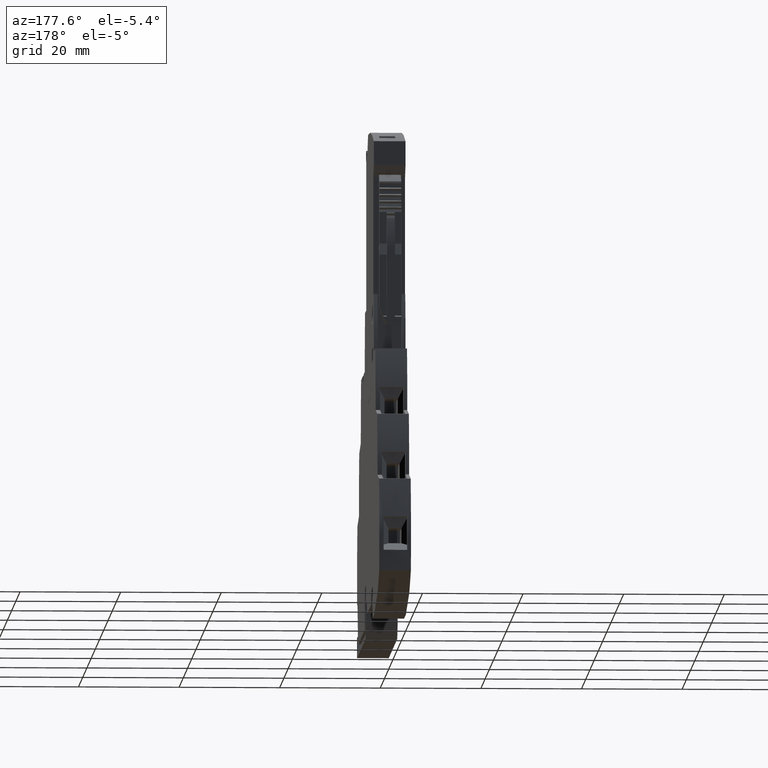
[diagram: clean part render]
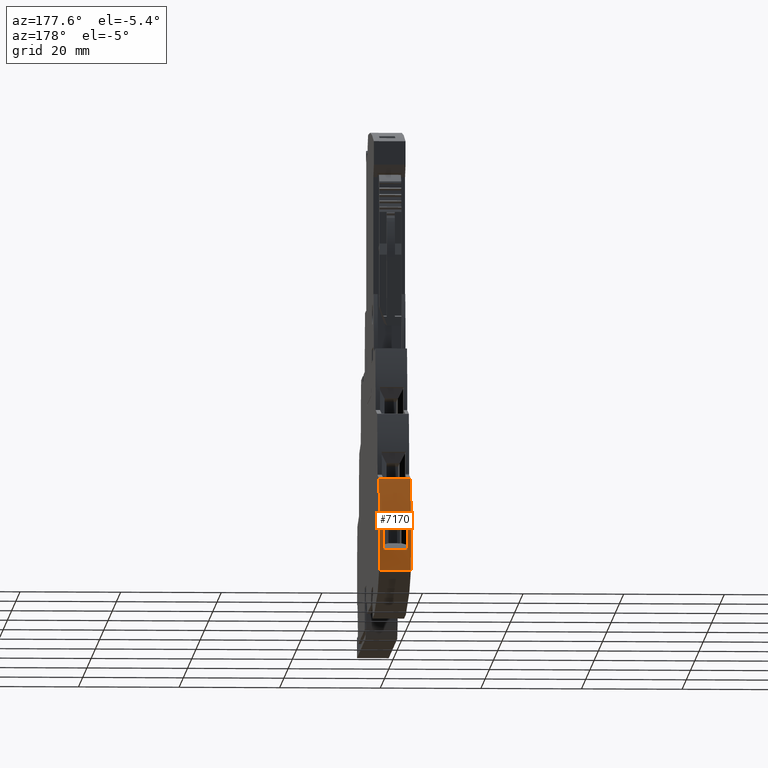
[diagram: same view with one face highlighted and labeled with its STEP entity id]
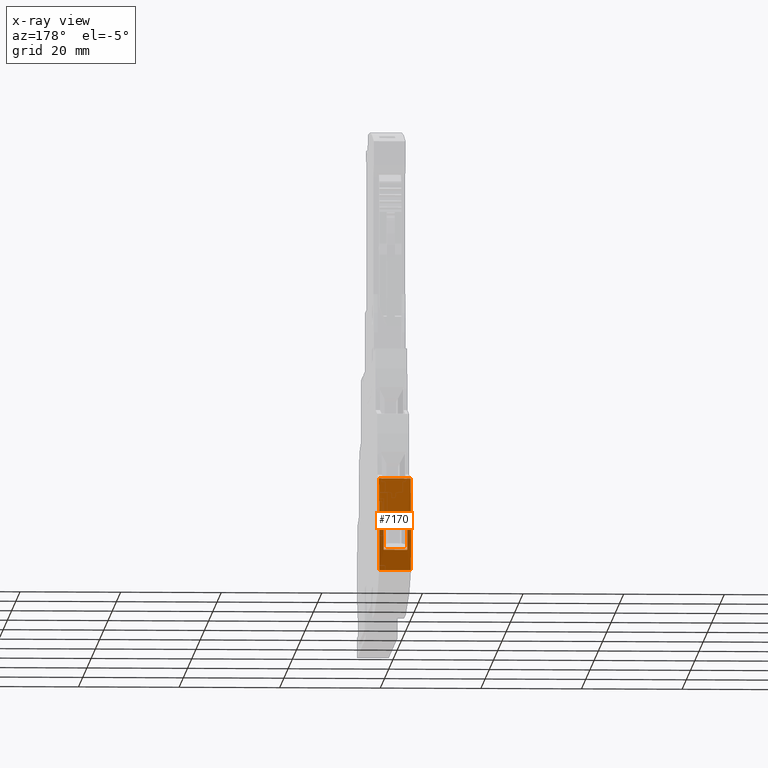
[diagram: x-ray of the same camera — body ghosted, the highlighted face saturated]
A machine part, auxiliary view. The second image highlights one B-rep face of the part: STEP entity #7170.
The next image is the same camera in x-ray: the body ghosted, the highlighted face saturated — about 0% of this face is hidden behind the body in this view.
In plain terms, the highlighted cylindrical surface (partial cylindrical patch) has radius 50 mm, axis along (1, -0, -0).
Its self-contained STEP definition (entity closure, byte-faithful):
#4360=CARTESIAN_POINT('',(29.2351400995934,0.586991843611994,
6.4775672949052E-10));
#4370=VERTEX_POINT('',#4360);
#4400=CARTESIAN_POINT('',(-20.3052351230874,7.3509568639236,
8.11195144784585E-9));
#4410=DIRECTION('',(4.25831752161686E-18,1.10352358519E-9,-1.));
#4420=DIRECTION('',(0.974090670046324,0.22615783543513,
2.49570509526172E-10));
#4430=AXIS2_PLACEMENT_3D('',#4400,#4410,#4420);
#4440=CIRCLE('',#4430,50.);
#4450=CARTESIAN_POINT('',(28.3248298487097,18.9749312586377,
2.09392812117623E-8));
#4460=VERTEX_POINT('',#4450);
#4470=EDGE_CURVE('',#4460,#4370,#4440,.T.);
#6500=CARTESIAN_POINT('',(-20.3052351230874,7.3509568639236,
8.11195144784585E-9));
#6510=DIRECTION('',(-4.25831752161686E-18,-1.10352358519E-9,1.));
#6520=DIRECTION('',(1.,0.,4.25831752161686E-18));
#6530=AXIS2_PLACEMENT_3D('',#6500,#6510,#6520);
#6540=CYLINDRICAL_SURFACE('',#6530,50.);
#6550=CARTESIAN_POINT('',(29.5415432134898,11.2623107749456,
5.43000029515854));
#6560=DIRECTION('',(0.,1.10352349877801E-9,-1.));
#6570=VECTOR('',#6560,1.);
#6580=LINE('',#6550,#6570);
#6590=CARTESIAN_POINT('',(29.5415432134898,11.2623107749457,
5.43000022619614));
#6600=VERTEX_POINT('',#6590);
#6610=CARTESIAN_POINT('',(29.5415432134898,11.2623107801323,
0.730000260513341));
#6620=VERTEX_POINT('',#6610);
#6630=EDGE_CURVE('',#6600,#6620,#6580,.T.);
#6640=ORIENTED_EDGE('',*,*,#6630,.T.);
#6650=CARTESIAN_POINT('',(-20.3052351230874,7.35095685793147,
5.43000029084227));
#6660=DIRECTION('',(9.73524377720023E-18,1.10352358561976E-9,-1.));
#6670=DIRECTION('',(0.9969355667315,0.0782270783408378,
8.63254356886501E-11));
#6680=AXIS2_PLACEMENT_3D('',#6650,#6660,#6670);
#6690=CIRCLE('',#6680,50.);
#6700=CARTESIAN_POINT('',(29.6206219840178,4.62904721194434,
5.43000028783858));
#6710=VERTEX_POINT('',#6700);
#6720=EDGE_CURVE('',#6600,#6710,#6690,.T.);
#6730=ORIENTED_EDGE('',*,*,#6720,.F.);
#6740=CARTESIAN_POINT('',(29.6206219839313,4.62904721554481,
0.730000224272752));
#6750=DIRECTION('',(0.,-1.10352349877801E-9,1.));
#6760=VECTOR('',#6750,1.);
#6770=LINE('',#6740,#6760);
#6780=CARTESIAN_POINT('',(29.6206219838792,4.62904721459035,
0.730000224272751));
#6790=VERTEX_POINT('',#6780);
#6800=EDGE_CURVE('',#6790,#6710,#6770,.T.);
#6810=ORIENTED_EDGE('',*,*,#6800,.T.);
#6820=CARTESIAN_POINT('',(-20.3052351230874,7.35095686311803,
0.730000227276443));
#6830=DIRECTION('',(-3.98719303630354E-18,-1.10352358520478E-9,1.));
#6840=DIRECTION('',(0.998517142138536,-0.0544381929851624,
-6.00738259137757E-11));
#6850=AXIS2_PLACEMENT_3D('',#6820,#6830,#6840);
#6860=CIRCLE('',#6850,50.);
#6870=EDGE_CURVE('',#6790,#6620,#6860,.T.);
#6880=ORIENTED_EDGE('',*,*,#6870,.F.);
#6890=EDGE_LOOP('',(#6880,#6810,#6730,#6640));
#6900=FACE_BOUND('',#6890,.T.);
#6910=ORIENTED_EDGE('',*,*,#4470,.F.);
#6920=CARTESIAN_POINT('',(29.2351400995934,0.586991843611994,
6.47756729490483E-10));
#6930=DIRECTION('',(-4.25831752161686E-18,-1.10352358519E-9,1.));
#6940=VECTOR('',#6930,1.);
#6950=LINE('',#6920,#6940);
#6960=CARTESIAN_POINT('',(29.2351400995934,0.586991836659795,
6.30000001132556));
#6970=VERTEX_POINT('',#6960);
#6980=EDGE_CURVE('',#4370,#6970,#6950,.T.);
#6990=ORIENTED_EDGE('',*,*,#6980,.F.);
#7000=CARTESIAN_POINT('',(-20.3052351230874,7.3509568569714,
6.30000001878975));
#7010=DIRECTION('',(-4.25831752161686E-18,-1.10352358519E-9,1.));
#7020=DIRECTION('',(1.,0.,4.25831752161686E-18));
#7030=AXIS2_PLACEMENT_3D('',#7000,#7010,#7020);
#7040=CIRCLE('',#7030,50.);
#7050=CARTESIAN_POINT('',(28.32482984972,18.9749312568832,
6.30000008066345));
#7060=VERTEX_POINT('',#7050);
#7070=EDGE_CURVE('',#6970,#7060,#7040,.T.);
#7080=ORIENTED_EDGE('',*,*,#7070,.F.);
#7090=CARTESIAN_POINT('',(28.3248298498939,18.9749312584075,
2.09392815528857E-8));
#7100=DIRECTION('',(-4.25831752161686E-18,-1.10352358519E-9,1.));
#7110=VECTOR('',#7100,1.);
#7120=LINE('',#7090,#7110);
#7130=EDGE_CURVE('',#4460,#7060,#7120,.T.);
#7140=ORIENTED_EDGE('',*,*,#7130,.T.);
#7150=EDGE_LOOP('',(#7140,#7080,#6990,#6910));
#7160=FACE_OUTER_BOUND('',#7150,.T.);
#7170=ADVANCED_FACE('',(#6900,#7160),#6540,.T.);